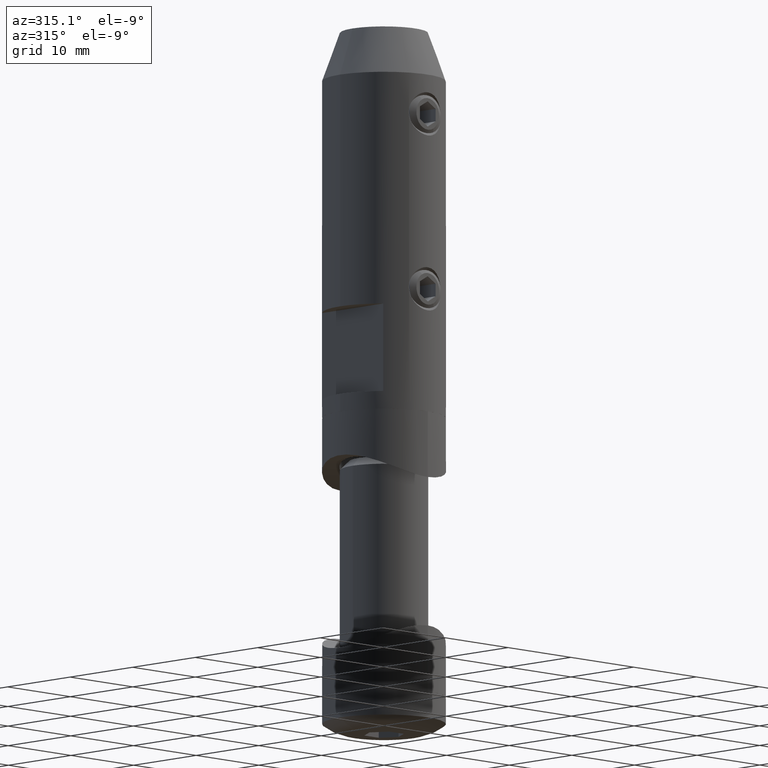
[diagram: clean part render]
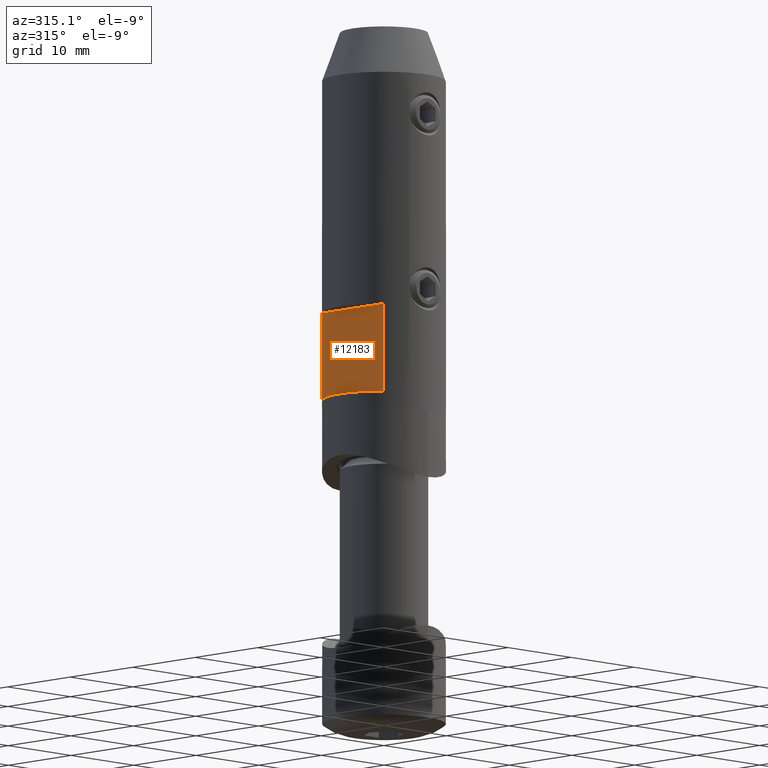
[diagram: same view with one face highlighted and labeled with its STEP entity id]
A machine part, auxiliary view. The second image highlights one B-rep face of the part: STEP entity #12183.
In plain terms, the highlighted planar face has unit normal (1, 0, -0).
Its self-contained STEP definition (entity closure, byte-faithful):
#268 = CARTESIAN_POINT ( 'NONE',  ( -5.000000000000000000, -4.898979485566350434, -9.999999999999998224 ) ) ;
#397 = VECTOR ( 'NONE', #2816, 1000.000000000000000 ) ;
#903 = PLANE ( 'NONE',  #16566 ) ;
#1079 = ORIENTED_EDGE ( 'NONE', *, *, #13542, .F. ) ;
#1529 = DIRECTION ( 'NONE',  ( -0.000000000000000000, -1.000000000000000000, 0.000000000000000000 ) ) ;
#1669 = CARTESIAN_POINT ( 'NONE',  ( -5.000000000000000000, 6.999999999999999112, -9.999999999999998224 ) ) ;
#2217 = VERTEX_POINT ( 'NONE', #268 ) ;
#2288 = VERTEX_POINT ( 'NONE', #6440 ) ;
#2313 = VECTOR ( 'NONE', #1529, 1000.000000000000000 ) ;
#2473 = ORIENTED_EDGE ( 'NONE', *, *, #9787, .T. ) ;
#2816 = DIRECTION ( 'NONE',  ( -0.000000000000000000, -0.000000000000000000, -1.000000000000000000 ) ) ;
#4141 = ORIENTED_EDGE ( 'NONE', *, *, #10151, .T. ) ;
#4496 = LINE ( 'NONE', #6093, #397 ) ;
#6093 = CARTESIAN_POINT ( 'NONE',  ( -5.000000000000000000, 4.898979485566353986, -22.00000000000000000 ) ) ;
#6381 = LINE ( 'NONE', #10724, #2313 ) ;
#6440 = CARTESIAN_POINT ( 'NONE',  ( -5.000000000000000000, -4.898979485566353098, -19.99999999999999645 ) ) ;
#7310 = VECTOR ( 'NONE', #10687, 1000.000000000000000 ) ;
#7574 = FACE_OUTER_BOUND ( 'NONE', #8913, .T. ) ;
#8558 = DIRECTION ( 'NONE',  ( 1.000000000000000000, 0.000000000000000000, -1.734723475976807834E-16 ) ) ;
#8913 = EDGE_LOOP ( 'NONE', ( #4141, #13767, #2473, #1079 ) ) ;
#9787 = EDGE_CURVE ( 'NONE', #2288, #2217, #10270, .T. ) ;
#10151 = EDGE_CURVE ( 'NONE', #17177, #11150, #4496, .T. ) ;
#10270 = LINE ( 'NONE', #14290, #13861 ) ;
#10687 = DIRECTION ( 'NONE',  ( -0.000000000000000000, -1.000000000000000000, 0.000000000000000000 ) ) ;
#10724 = CARTESIAN_POINT ( 'NONE',  ( -5.000000000000001776, 6.999999999999999112, -19.99999999999999645 ) ) ;
#11150 = VERTEX_POINT ( 'NONE', #17551 ) ;
#11406 = EDGE_CURVE ( 'NONE', #11150, #2288, #6381, .T. ) ;
#11562 = CARTESIAN_POINT ( 'NONE',  ( -5.000000000000001776, 6.999999999999999112, -19.99999999999999645 ) ) ;
#12183 = ADVANCED_FACE ( 'NONE', ( #7574 ), #903, .F. ) ;
#12928 = DIRECTION ( 'NONE',  ( -1.734723475976807834E-16, 0.000000000000000000, -1.000000000000000000 ) ) ;
#12941 = CARTESIAN_POINT ( 'NONE',  ( -5.000000000000000000, 4.898979485566354874, -9.999999999999998224 ) ) ;
#13542 = EDGE_CURVE ( 'NONE', #17177, #2217, #14028, .T. ) ;
#13767 = ORIENTED_EDGE ( 'NONE', *, *, #11406, .T. ) ;
#13861 = VECTOR ( 'NONE', #15550, 1000.000000000000000 ) ;
#14028 = LINE ( 'NONE', #1669, #7310 ) ;
#14290 = CARTESIAN_POINT ( 'NONE',  ( -5.000000000000000000, -4.898979485566353986, -22.00000000000000000 ) ) ;
#15550 = DIRECTION ( 'NONE',  ( 0.000000000000000000, 0.000000000000000000, 1.000000000000000000 ) ) ;
#16566 = AXIS2_PLACEMENT_3D ( 'NONE', #11562, #8558, #12928 ) ;
#17177 = VERTEX_POINT ( 'NONE', #12941 ) ;
#17551 = CARTESIAN_POINT ( 'NONE',  ( -5.000000000000000000, 4.898979485566353098, -19.99999999999999645 ) ) ;